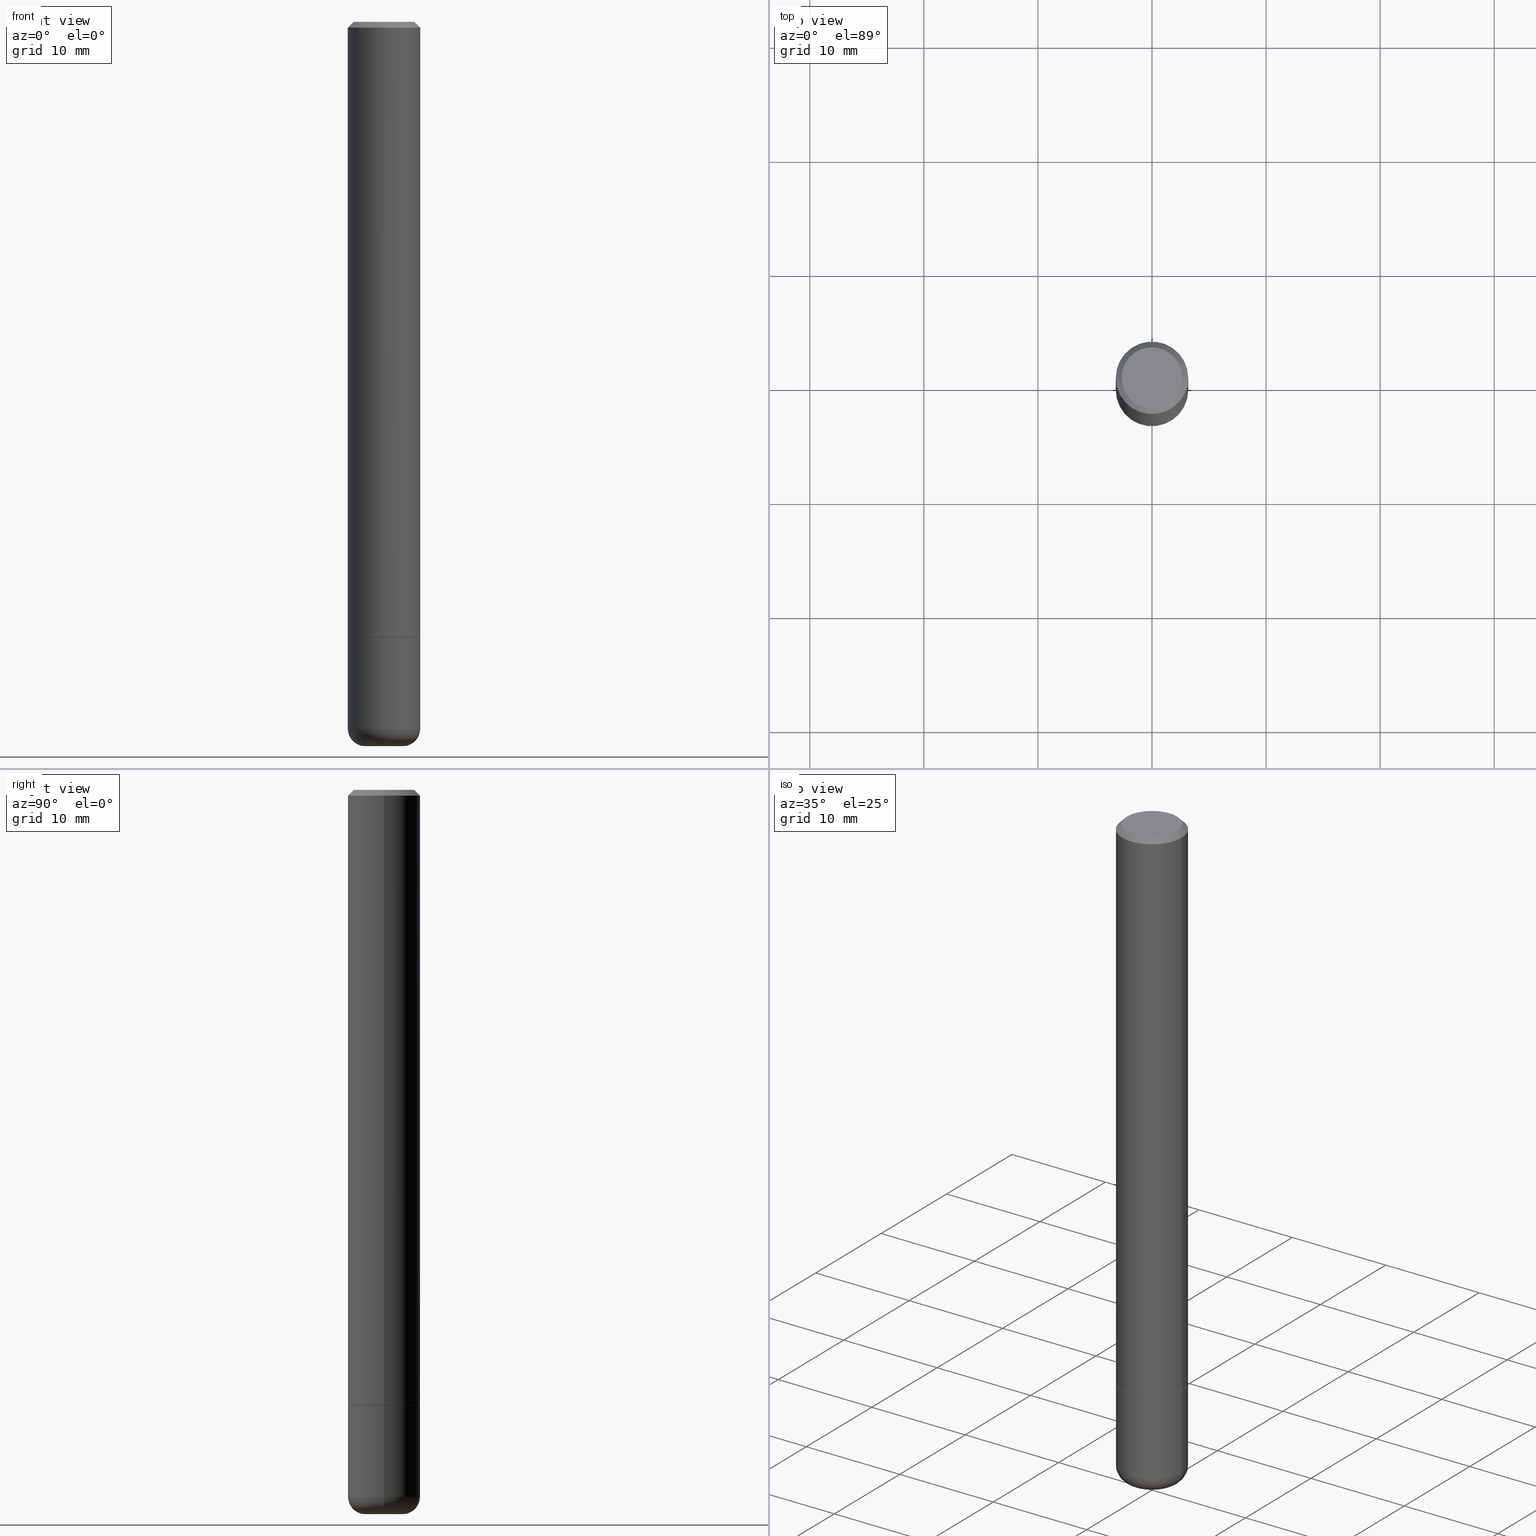
[diagram: canonical four-view strip — front | top / right | iso, engineering-drawing reading convention]
A machine part, canonical four-view strip (front | top / right | iso — engineering-drawing reading convention). The complete STEP part file that produces these views, byte-faithful:
ISO-10303-21;
HEADER;
FILE_DESCRIPTION (( 'STEP AP203' ),
    '1' );
FILE_NAME ('35668.STEP',
    '2022-11-02T20:37:26',
    ( '' ),
    ( '' ),
    'SwSTEP 2.0',
    'SolidWorks 2022',
    '' );
FILE_SCHEMA (( 'CONFIG_CONTROL_DESIGN' ));
ENDSEC;

DATA;
#1 = ORIENTED_EDGE ( 'NONE', *, *, #438, .F. ) ;
#2 = EDGE_CURVE ( 'NONE', #109, #209, #35, .T. ) ;
#3 = PERSON_AND_ORGANIZATION_ROLE ( 'creator' ) ;
#4 = AXIS2_PLACEMENT_3D ( 'NONE', #250, #470, #98 ) ;
#5 = APPROVAL_DATE_TIME ( #230, #8 ) ;
#6 = EDGE_CURVE ( 'NONE', #269, #481, #456, .T. ) ;
#7 = ORIENTED_EDGE ( 'NONE', *, *, #208, .T. ) ;
#8 = APPROVAL ( #306, 'UNSPECIFIED' ) ;
#9 = CARTESIAN_POINT ( 'NONE',  ( 1.043851414335219781E-45, -1.490343170380447145E-31, -4.268512490100411279E-17 ) ) ;
#10 = FACE_OUTER_BOUND ( 'NONE', #401, .T. ) ;
#11 = ORIENTED_EDGE ( 'NONE', *, *, #166, .F. ) ;
#12 = CARTESIAN_POINT ( 'NONE',  ( 5.966949474049262823E-29, -8.519222443471929064E-15, -2.440002284616149986 ) ) ;
#13 = DIRECTION ( 'NONE',  ( 2.445468806185136597E-29, -3.491481338843145583E-15, -1.000000000000000000 ) ) ;
#14 = ORIENTED_EDGE ( 'NONE', *, *, #86, .T. ) ;
#15 = FACE_OUTER_BOUND ( 'NONE', #84, .T. ) ;
#16 = AXIS2_PLACEMENT_3D ( 'NONE', #343, #347, #194 ) ;
#17 = CIRCLE ( 'NONE', #301, 0.1049999999999993577 ) ;
#18 = DIRECTION ( 'NONE',  ( 0.9993908270190955401, -6.978169709227559632E-15, -0.03489949670250663133 ) ) ;
#19 = EDGE_CURVE ( 'NONE', #147, #381, #78, .T. ) ;
#20 = DIRECTION ( 'NONE',  ( -1.000000000000000000, 6.982962677686265922E-15, -4.876176775795935793E-29 ) ) ;
#21 = CARTESIAN_POINT ( 'NONE',  ( 4.890937612370295054E-31, -6.982962677686322424E-17, -0.02000000000000009062 ) ) ;
#22 = ORIENTED_EDGE ( 'NONE', *, *, #384, .F. ) ;
#23 = CARTESIAN_POINT ( 'NONE',  ( 5.196621213143416389E-29, -7.419397845041685201E-15, -2.125000000000000444 ) ) ;
#24 = CARTESIAN_POINT ( 'NONE',  ( 6.113387482807804113E-29, -8.728297109885438444E-15, -2.499883649035179900 ) ) ;
#25 = CARTESIAN_POINT ( 'NONE',  ( -0.1249999999999998335, 8.881784197001240490E-16, -6.148668862818623819E-30 ) ) ;
#26 = CARTESIAN_POINT ( 'NONE',  ( -0.05114390787009806538, -8.371161110037518943E-15, -2.499883649035179900 ) ) ;
#27 = CONICAL_SURFACE ( 'NONE', #433, 0.1239999999999996244, 0.7853981633974141952 ) ;
#28 = CARTESIAN_POINT ( 'NONE',  ( 5.196621213143416389E-29, -7.419397845041685201E-15, -2.125000000000000444 ) ) ;
#29 = ORIENTED_EDGE ( 'NONE', *, *, #224, .T. ) ;
#30 = DIRECTION ( 'NONE',  ( 1.000000000000000000, -6.982962677686269077E-15, 0.000000000000000000 ) ) ;
#31 = VERTEX_POINT ( 'NONE', #464 ) ;
#32 = CONICAL_SURFACE ( 'NONE', #213, 0.05114390787009806538, 1.535889741755004367 ) ;
#33 = CARTESIAN_POINT ( 'NONE',  ( 5.196621213143416389E-29, -7.419397845041685201E-15, -2.125000000000000444 ) ) ;
#34 = CIRCLE ( 'NONE', #323, 0.1249999999999996253 ) ;
#35 = LINE ( 'NONE', #226, #51 ) ;
#36 = APPROVAL ( #412, 'UNSPECIFIED' ) ;
#37 = APPROVAL_PERSON_ORGANIZATION ( #119, #8, #42 ) ;
#38 = DIRECTION ( 'NONE',  ( 0.7071067811865232589, -2.468850131082003836E-15, 0.7071067811865715536 ) ) ;
#39 =( LENGTH_UNIT ( ) NAMED_UNIT ( * ) SI_UNIT ( $, .METRE. ) );
#40 = ORIENTED_EDGE ( 'NONE', *, *, #228, .F. ) ;
#41 = CARTESIAN_POINT ( 'NONE',  ( -0.06447640787009809027, -7.950807469239815743E-15, -2.500000000000000000 ) ) ;
#42 = APPROVAL_ROLE ( '' ) ;
#43 = VERTEX_POINT ( 'NONE', #54 ) ;
#44 = COORDINATED_UNIVERSAL_TIME_OFFSET ( 5, 0, .BEHIND. ) ;
#45 = CARTESIAN_POINT ( 'NONE',  ( 6.113387482807804113E-29, -8.728297109885438444E-15, -2.499883649035179900 ) ) ;
#46 = AXIS2_PLACEMENT_3D ( 'NONE', #391, #13, #66 ) ;
#47 = CIRCLE ( 'NONE', #271, 0.1239999999999996244 ) ;
#48 = PLANE ( 'NONE',  #294 ) ;
#49 = PERSON_AND_ORGANIZATION ( #425, #247 ) ;
#50 = APPROVAL ( #490, 'UNSPECIFIED' ) ;
#51 = VECTOR ( 'NONE', #185, 39.37007874015748143 ) ;
#52 = AXIS2_PLACEMENT_3D ( 'NONE', #12, #235, #313 ) ;
#53 = CYLINDRICAL_SURFACE ( 'NONE', #309, 0.1249999999999994865 ) ;
#54 = CARTESIAN_POINT ( 'NONE',  ( 0.1249999999999993477, -9.273918764983002075E-16, -0.02000000000000009062 ) ) ;
#55 = EDGE_LOOP ( 'NONE', ( #180, #177, #237, #204 ) ) ;
#56 = DIRECTION ( 'NONE',  ( 0.7071067811865465735, -7.319954787623252890E-15, -0.7071067811865484609 ) ) ;
#57 = FACE_OUTER_BOUND ( 'NONE', #389, .T. ) ;
#58 = DIRECTION ( 'NONE',  ( -6.982962677686266711E-15, -1.000000000000000000, 3.491481338843145583E-15 ) ) ;
#59 = ADVANCED_FACE ( 'NONE', ( #10 ), #32, .F. ) ;
#60 = EDGE_CURVE ( 'NONE', #31, #43, #440, .T. ) ;
#61 = DIMENSIONAL_EXPONENTS ( 1.000000000000000000, 0.000000000000000000, 0.000000000000000000, 0.000000000000000000, 0.000000000000000000, 0.000000000000000000, 0.000000000000000000 ) ;
#62 = CARTESIAN_POINT ( 'NONE',  ( 0.06447640787009809027, -9.178939696856037528E-15, -2.500000000000000000 ) ) ;
#63 = VECTOR ( 'NONE', #186, 39.37007874015748854 ) ;
#64 = FACE_OUTER_BOUND ( 'NONE', #436, .T. ) ;
#65 = DIRECTION ( 'NONE',  ( 1.000000000000000000, -6.982962677686266711E-15, 4.876176775795935793E-29 ) ) ;
#66 = DIRECTION ( 'NONE',  ( -1.000000000000000000, 6.982962677686264344E-15, 0.000000000000000000 ) ) ;
#67 = APPLICATION_CONTEXT ( 'configuration controlled 3d designs of mechanical parts and assemblies' ) ;
#68 = CARTESIAN_POINT ( 'NONE',  ( -0.1249999999999996253, -7.081131724556683478E-15, -2.125000000000000444 ) ) ;
#69 = PERSON_AND_ORGANIZATION_ROLE ( 'design_owner' ) ;
#70 = VECTOR ( 'NONE', #328, 39.37007874015748854 ) ;
#71 = DATE_AND_TIME ( #437, #460 ) ;
#72 = DIRECTION ( 'NONE',  ( -2.445468806185136877E-29, 3.491481338843145188E-15, 1.000000000000000000 ) ) ;
#73 = ORIENTED_EDGE ( 'NONE', *, *, #134, .T. ) ;
#74 = CC_DESIGN_DATE_AND_TIME_ASSIGNMENT ( #191, #157, ( #155 ) ) ;
#75 = LINE ( 'NONE', #400, #339 ) ;
#76 = ORIENTED_EDGE ( 'NONE', *, *, #392, .F. ) ;
#77 = CARTESIAN_POINT ( 'NONE',  ( 6.113387482807804113E-29, -8.728297109885438444E-15, -2.499883649035179900 ) ) ;
#78 = CIRCLE ( 'NONE', #322, 0.05999999999999985206 ) ;
#79 = DIRECTION ( 'NONE',  ( 1.000000000000000000, 0.000000000000000000, 0.000000000000000000 ) ) ;
#80 = CIRCLE ( 'NONE', #363, 0.1249999999999996253 ) ;
#81 = DIRECTION ( 'NONE',  ( -2.445468806185136597E-29, 3.491481338843145583E-15, 1.000000000000000000 ) ) ;
#82 = CARTESIAN_POINT ( 'NONE',  ( -0.1239999999999996244, -6.538324852699164133E-15, -2.125000000000000444 ) ) ;
#83 = CALENDAR_DATE ( 2022, 2, 11 ) ;
#84 = EDGE_LOOP ( 'NONE', ( #478, #138, #445, #95 ) ) ;
#85 = DIRECTION ( 'NONE',  ( 2.438088387897960049E-29, -3.491481338843145188E-15, -1.000000000000000000 ) ) ;
#86 = EDGE_CURVE ( 'NONE', #346, #147, #101, .T. ) ;
#87 = FACE_OUTER_BOUND ( 'NONE', #372, .T. ) ;
#88 = CONICAL_SURFACE ( 'NONE', #415, 0.1249999999999993477, 0.7853981633974469467 ) ;
#89 = LOCAL_TIME ( 16, 37, 26.00000000000000000, #340 ) ;
#90 = EDGE_LOOP ( 'NONE', ( #333, #466, #159, #455 ) ) ;
#91 = ADVANCED_FACE ( 'NONE', ( #57 ), #190, .F. ) ;
#92 = AXIS2_PLACEMENT_3D ( 'NONE', #287, #435, #106 ) ;
#93 = CARTESIAN_POINT ( 'NONE',  ( 0.1249999999999996253, -8.292268179752466962E-15, -2.125000000000000444 ) ) ;
#94 = MANIFOLD_SOLID_BREP ( 'Body-Move/Copy2[2]', #150 ) ;
#95 = ORIENTED_EDGE ( 'NONE', *, *, #252, .F. ) ;
#96 = EDGE_CURVE ( 'NONE', #483, #481, #107, .T. ) ;
#97 = DIRECTION ( 'NONE',  ( -2.445468806185136597E-29, 3.491481338843145583E-15, 1.000000000000000000 ) ) ;
#98 = DIRECTION ( 'NONE',  ( 1.000000000000000000, -6.982962677686280121E-15, 0.000000000000000000 ) ) ;
#99 = DIRECTION ( 'NONE',  ( -2.445468806185136597E-29, 3.491481338843145583E-15, 1.000000000000000000 ) ) ;
#100 = CARTESIAN_POINT ( 'NONE',  ( 6.113672015462842613E-29, -8.728703347107864943E-15, -2.500000000000000000 ) ) ;
#101 = CIRCLE ( 'NONE', #158, 0.06447640787009809027 ) ;
#102 = CARTESIAN_POINT ( 'NONE',  ( 0.000000000000000000, 0.000000000000000000, 0.000000000000000000 ) ) ;
#103 = AXIS2_PLACEMENT_3D ( 'NONE', #402, #85, #265 ) ;
#104 = VERTEX_POINT ( 'NONE', #361 ) ;
#105 = ADVANCED_FACE ( 'NONE', ( #64 ), #253, .F. ) ;
#106 = DIRECTION ( 'NONE',  ( 1.000000000000000000, -6.982962677686268288E-15, 4.883557194083113462E-29 ) ) ;
#107 = LINE ( 'NONE', #387, #432 ) ;
#108 = EDGE_CURVE ( 'NONE', #483, #269, #167, .T. ) ;
#109 = VERTEX_POINT ( 'NONE', #288 ) ;
#110 = MANIFOLD_SOLID_BREP ( 'Body-Move/Copy2[1]', #475 ) ;
#111 = DIRECTION ( 'NONE',  ( -2.445468806185136597E-29, 3.491481338843145583E-15, 1.000000000000000000 ) ) ;
#112 = DIRECTION ( 'NONE',  ( -1.000000000000000000, 6.982962677686265922E-15, 0.000000000000000000 ) ) ;
#113 = ORIENTED_EDGE ( 'NONE', *, *, #108, .F. ) ;
#114 = PERSON_AND_ORGANIZATION ( #425, #247 ) ;
#115 = ORIENTED_EDGE ( 'NONE', *, *, #60, .F. ) ;
#116 = DIRECTION ( 'NONE',  ( 1.000000000000000000, -6.982962677686269077E-15, 0.000000000000000000 ) ) ;
#117 = CIRCLE ( 'NONE', #380, 0.1249999999999993477 ) ;
#118 = ORIENTED_EDGE ( 'NONE', *, *, #337, .T. ) ;
#119 = PERSON_AND_ORGANIZATION ( #425, #247 ) ;
#120 = VERTEX_POINT ( 'NONE', #175 ) ;
#121 = APPROVAL_DATE_TIME ( #376, #36 ) ;
#122 = EDGE_CURVE ( 'NONE', #147, #346, #229, .T. ) ;
#123 = CARTESIAN_POINT ( 'NONE',  ( 5.196621213143416389E-29, -7.419397845041685201E-15, -2.125000000000000444 ) ) ;
#124 = DIRECTION ( 'NONE',  ( -2.445468806185136597E-29, 3.491481338843145583E-15, 1.000000000000000000 ) ) ;
#125 = DIRECTION ( 'NONE',  ( -2.445468806185136597E-29, 3.491481338843145583E-15, 1.000000000000000000 ) ) ;
#126 = ORIENTED_EDGE ( 'NONE', *, *, #216, .F. ) ;
#127 = ADVANCED_FACE ( 'NONE', ( #270 ), #444, .F. ) ;
#128 = LINE ( 'NONE', #427, #192 ) ;
#129 = DIRECTION ( 'NONE',  ( -1.000000000000000000, 6.982962677686275388E-15, 0.000000000000000000 ) ) ;
#130 = ORIENTED_EDGE ( 'NONE', *, *, #431, .T. ) ;
#131 = FACE_OUTER_BOUND ( 'NONE', #90, .T. ) ;
#132 = CYLINDRICAL_SURFACE ( 'NONE', #205, 0.1249999999999998335 ) ;
#133 = AXIS2_PLACEMENT_3D ( 'NONE', #463, #365, #112 ) ;
#134 = EDGE_CURVE ( 'NONE', #481, #269, #231, .T. ) ;
#135 = COORDINATED_UNIVERSAL_TIME_OFFSET ( 5, 0, .BEHIND. ) ;
#136 = EDGE_LOOP ( 'NONE', ( #447, #383, #29, #285 ) ) ;
#137 = CARTESIAN_POINT ( 'NONE',  ( -0.1250000000000000278, -7.081131724556681111E-15, -2.440002284616149986 ) ) ;
#138 = ORIENTED_EDGE ( 'NONE', *, *, #438, .T. ) ;
#139 = EDGE_CURVE ( 'NONE', #104, #145, #371, .T. ) ;
#140 = EDGE_CURVE ( 'NONE', #434, #449, #335, .T. ) ;
#141 = VECTOR ( 'NONE', #210, 39.37007874015748143 ) ;
#142 = AXIS2_PLACEMENT_3D ( 'NONE', #77, #409, #406 ) ;
#143 = DIRECTION ( 'NONE',  ( 1.000000000000000000, -6.982962677686267499E-15, 4.874400871621268483E-29 ) ) ;
#144 = CARTESIAN_POINT ( 'NONE',  ( 0.000000000000000000, 0.000000000000000000, 0.000000000000000000 ) ) ;
#145 = VERTEX_POINT ( 'NONE', #225 ) ;
#146 = MECHANICAL_CONTEXT ( 'NONE', #67, 'mechanical' ) ;
#147 = VERTEX_POINT ( 'NONE', #41 ) ;
#148 = ORIENTED_EDGE ( 'NONE', *, *, #480, .T. ) ;
#149 = ADVANCED_FACE ( 'NONE', ( #87 ), #484, .T. ) ;
#150 = CLOSED_SHELL ( 'NONE', ( #199, #318, #377, #303, #243, #171, #232, #127 ) ) ;
#151 = CALENDAR_DATE ( 2022, 2, 11 ) ;
#152 = VECTOR ( 'NONE', #56, 39.37007874015748143 ) ;
#153 = DIRECTION ( 'NONE',  ( 7.105427357601001859E-15, 1.000000000000000000, -3.491481338843145583E-15 ) ) ;
#154 = APPLICATION_CONTEXT ( 'configuration controlled 3d designs of mechanical parts and assemblies' ) ;
#155 = PRODUCT_DEFINITION ( 'UNKNOWN', '', #222, #259 ) ;
#156 = DIRECTION ( 'NONE',  ( -2.445468806185136597E-29, 3.491481338843145583E-15, 1.000000000000000000 ) ) ;
#157 = DATE_TIME_ROLE ( 'creation_date' ) ;
#158 = AXIS2_PLACEMENT_3D ( 'NONE', #100, #244, #358 ) ;
#159 = ORIENTED_EDGE ( 'NONE', *, *, #216, .T. ) ;
#160 = LOCAL_TIME ( 16, 37, 26.00000000000000000, #162 ) ;
#161 = CARTESIAN_POINT ( 'NONE',  ( 5.966949474049262823E-29, -8.519222443471929064E-15, -2.440002284616149986 ) ) ;
#162 = COORDINATED_UNIVERSAL_TIME_OFFSET ( 5, 0, .BEHIND. ) ;
#163 = FACE_OUTER_BOUND ( 'NONE', #351, .T. ) ;
#164 = ADVANCED_FACE ( 'NONE', ( #15 ), #331, .F. ) ;
#165 = CARTESIAN_POINT ( 'NONE',  ( 0.1049999999999993577, -8.238720831321533257E-16, -4.268512490099867088E-17 ) ) ;
#166 = EDGE_CURVE ( 'NONE', #109, #381, #397, .T. ) ;
#167 = LINE ( 'NONE', #26, #141 ) ;
#168 = AXIS2_PLACEMENT_3D ( 'NONE', #200, #348, #319 ) ;
#169 = FACE_OUTER_BOUND ( 'NONE', #413, .T. ) ;
#170 = DIRECTION ( 'NONE',  ( -1.000000000000000000, 6.982962677686265922E-15, 0.000000000000000000 ) ) ;
#171 = ADVANCED_FACE ( 'NONE', ( #241 ), #236, .T. ) ;
#172 = FACE_OUTER_BOUND ( 'NONE', #136, .T. ) ;
#173 = DIRECTION ( 'NONE',  ( -2.445468806185136877E-29, 3.491481338843145188E-15, 1.000000000000000000 ) ) ;
#174 = VECTOR ( 'NONE', #315, 39.37007874015748143 ) ;
#175 = CARTESIAN_POINT ( 'NONE',  ( -0.1049999999999993577, 7.681258945454844472E-16, -4.268512490100935748E-17 ) ) ;
#176 = APPLICATION_PROTOCOL_DEFINITION ( 'international standard', 'config_control_design', 1994, #154 ) ;
#177 = ORIENTED_EDGE ( 'NONE', *, *, #267, .T. ) ;
#178 = DIRECTION ( 'NONE',  ( -2.445468806185136597E-29, 3.491481338843145583E-15, 1.000000000000000000 ) ) ;
#179 = CYLINDRICAL_SURFACE ( 'NONE', #245, 0.1249999999999998335 ) ;
#180 = ORIENTED_EDGE ( 'NONE', *, *, #297, .F. ) ;
#181 = DIRECTION ( 'NONE',  ( 1.000000000000000000, -6.982962677686269077E-15, 0.000000000000000000 ) ) ;
#182 = VERTEX_POINT ( 'NONE', #165 ) ;
#183 = CIRCLE ( 'NONE', #221, 0.05999999999999985206 ) ;
#184 = CARTESIAN_POINT ( 'NONE',  ( 4.890937612370295054E-31, -6.982962677686322424E-17, -0.02000000000000009062 ) ) ;
#185 = DIRECTION ( 'NONE',  ( -2.445468806185136877E-29, 3.491481338843145188E-15, 1.000000000000000000 ) ) ;
#186 = DIRECTION ( 'NONE',  ( -0.7071067811865232589, 7.493145998870265808E-15, 0.7071067811865715536 ) ) ;
#187 = DIRECTION ( 'NONE',  ( 1.000000000000000000, -6.982962677686267499E-15, 0.000000000000000000 ) ) ;
#188 = ORIENTED_EDGE ( 'NONE', *, *, #453, .T. ) ;
#189 = ORIENTED_EDGE ( 'NONE', *, *, #139, .T. ) ;
#190 = CONICAL_SURFACE ( 'NONE', #468, 0.05114390787009806538, 1.535889741755004367 ) ;
#191 = DATE_AND_TIME ( #151, #442 ) ;
#192 = VECTOR ( 'NONE', #465, 39.37007874015748854 ) ;
#193 = ORIENTED_EDGE ( 'NONE', *, *, #228, .T. ) ;
#194 = DIRECTION ( 'NONE',  ( -1.000000000000000000, 6.982962677686264344E-15, 0.000000000000000000 ) ) ;
#195 = PERSON_AND_ORGANIZATION ( #425, #247 ) ;
#196 = CONICAL_SURFACE ( 'NONE', #133, 0.1249999999999993477, 0.7853981633974469467 ) ;
#197 =( GEOMETRIC_REPRESENTATION_CONTEXT ( 3 ) GLOBAL_UNCERTAINTY_ASSIGNED_CONTEXT ( ( #279 ) ) GLOBAL_UNIT_ASSIGNED_CONTEXT ( ( #251, #443, #394 ) ) REPRESENTATION_CONTEXT ( 'NONE', 'WORKASPACE' ) );
#198 = DIRECTION ( 'NONE',  ( 1.000000000000000000, -6.982962677686265922E-15, 4.876176775795935793E-29 ) ) ;
#199 = ADVANCED_FACE ( 'NONE', ( #278 ), #27, .T. ) ;
#200 = CARTESIAN_POINT ( 'NONE',  ( 5.966949474049262823E-29, -8.519222443471929064E-15, -2.440002284616149986 ) ) ;
#201 = DIRECTION ( 'NONE',  ( 2.445468806185136597E-29, -3.491481338843145583E-15, -1.000000000000000000 ) ) ;
#202 = ORIENTED_EDGE ( 'NONE', *, *, #350, .T. ) ;
#203 = DIRECTION ( 'NONE',  ( 1.000000000000000000, -6.982962677686253300E-15, 0.000000000000000000 ) ) ;
#204 = ORIENTED_EDGE ( 'NONE', *, *, #350, .F. ) ;
#205 = AXIS2_PLACEMENT_3D ( 'NONE', #357, #283, #65 ) ;
#206 = CARTESIAN_POINT ( 'NONE',  ( 5.196621213143416389E-29, -7.419397845041685201E-15, -2.125000000000000444 ) ) ;
#207 = DIRECTION ( 'NONE',  ( -2.445468806185136597E-29, 3.491481338843145583E-15, 1.000000000000000000 ) ) ;
#208 = EDGE_CURVE ( 'NONE', #145, #43, #317, .T. ) ;
#209 = VERTEX_POINT ( 'NONE', #93 ) ;
#210 = DIRECTION ( 'NONE',  ( -0.9993908270190955401, 6.856857904024535960E-15, -0.03489949670250663133 ) ) ;
#211 = CARTESIAN_POINT ( 'NONE',  ( 5.194175744337230786E-29, -7.415906363702842194E-15, -2.124000000000000554 ) ) ;
#212 = APPROVAL_ROLE ( '' ) ;
#213 = AXIS2_PLACEMENT_3D ( 'NONE', #45, #280, #129 ) ;
#214 = AXIS2_PLACEMENT_3D ( 'NONE', #206, #215, #181 ) ;
#215 = DIRECTION ( 'NONE',  ( -2.445468806185136597E-29, 3.491481338843145583E-15, 1.000000000000000000 ) ) ;
#216 = EDGE_CURVE ( 'NONE', #120, #31, #272, .T. ) ;
#217 = ORIENTED_EDGE ( 'NONE', *, *, #2, .F. ) ;
#218 = CC_DESIGN_PERSON_AND_ORGANIZATION_ASSIGNMENT ( #114, #69, ( #450 ) ) ;
#219 = ORIENTED_EDGE ( 'NONE', *, *, #108, .T. ) ;
#220 = EDGE_LOOP ( 'NONE', ( #118, #148, #418, #298 ) ) ;
#221 = AXIS2_PLACEMENT_3D ( 'NONE', #274, #58, #203 ) ;
#222 = PRODUCT_DEFINITION_FORMATION_WITH_SPECIFIED_SOURCE ( 'ANY', '', #450, .NOT_KNOWN. ) ;
#223 = DIRECTION ( 'NONE',  ( 1.000000000000000000, -6.982962677686255667E-15, 0.000000000000000000 ) ) ;
#224 = EDGE_CURVE ( 'NONE', #346, #109, #183, .T. ) ;
#225 = CARTESIAN_POINT ( 'NONE',  ( 0.1249999999999996253, -8.288776698413623955E-15, -2.124000000000000554 ) ) ;
#226 = CARTESIAN_POINT ( 'NONE',  ( 0.1249999999999998335, -8.728703347107821555E-16, 6.095220969744911333E-30 ) ) ;
#227 = SECURITY_CLASSIFICATION_LEVEL ( 'unclassified' ) ;
#228 = EDGE_CURVE ( 'NONE', #182, #120, #448, .T. ) ;
#229 = CIRCLE ( 'NONE', #4, 0.06447640787009809027 ) ;
#230 = DATE_AND_TIME ( #454, #89 ) ;
#231 = CIRCLE ( 'NONE', #142, 0.05114390787009806538 ) ;
#232 = ADVANCED_FACE ( 'NONE', ( #163 ), #239, .F. ) ;
#233 = DIRECTION ( 'NONE',  ( 1.000000000000000000, -6.982962677686267499E-15, 4.874400871621268483E-29 ) ) ;
#234 = PERSON_AND_ORGANIZATION ( #425, #247 ) ;
#235 = DIRECTION ( 'NONE',  ( -2.445468806185136597E-29, 3.491481338843145583E-15, 1.000000000000000000 ) ) ;
#236 = CONICAL_SURFACE ( 'NONE', #353, 0.1239999999999996244, 0.7853981633974141952 ) ;
#237 = ORIENTED_EDGE ( 'NONE', *, *, #2, .T. ) ;
#238 = AXIS2_PLACEMENT_3D ( 'NONE', #257, #368, #79 ) ;
#239 = PLANE ( 'NONE',  #458 ) ;
#240 = DIRECTION ( 'NONE',  ( 1.000000000000000000, -6.982962677686265922E-15, 0.000000000000000000 ) ) ;
#241 = FACE_OUTER_BOUND ( 'NONE', #316, .T. ) ;
#242 = DIRECTION ( 'NONE',  ( 1.000000000000000000, -6.982962677686265922E-15, 4.876176775795935793E-29 ) ) ;
#243 = ADVANCED_FACE ( 'NONE', ( #169 ), #53, .T. ) ;
#244 = DIRECTION ( 'NONE',  ( -2.445468806185136597E-29, 3.491481338843145583E-15, 1.000000000000000000 ) ) ;
#245 = AXIS2_PLACEMENT_3D ( 'NONE', #144, #296, #369 ) ;
#246 = TOROIDAL_SURFACE ( 'NONE', #92, 0.06500000000000019651, 0.05999999999999985206 ) ;
#247 = ORGANIZATION ( 'UNSPECIFIED', 'UNSPECIFIED', '' ) ;
#248 = DIRECTION ( 'NONE',  ( 2.445468806185136597E-29, -3.491481338843145583E-15, -1.000000000000000000 ) ) ;
#249 = CARTESIAN_POINT ( 'NONE',  ( 8.728703347108324454E-16, 0.1249999999999922007, -2.125000000000000888 ) ) ;
#250 = CARTESIAN_POINT ( 'NONE',  ( 6.113672015462842613E-29, -8.728703347107864943E-15, -2.500000000000000000 ) ) ;
#251 =( CONVERSION_BASED_UNIT ( 'INCH', #486 ) LENGTH_UNIT ( ) NAMED_UNIT ( #61 ) );
#252 = EDGE_CURVE ( 'NONE', #269, #147, #128, .T. ) ;
#253 = CONICAL_SURFACE ( 'NONE', #46, 0.06447640787009809027, 1.562069680534929894 ) ;
#254 = VECTOR ( 'NONE', #173, 39.37007874015748143 ) ;
#255 = CARTESIAN_POINT ( 'NONE',  ( 5.194175744337230786E-29, -7.415906363702842194E-15, -2.124000000000000554 ) ) ;
#256 = EDGE_LOOP ( 'NONE', ( #130, #329, #305, #291 ) ) ;
#257 = CARTESIAN_POINT ( 'NONE',  ( 0.000000000000000000, 0.000000000000000000, 0.000000000000000000 ) ) ;
#258 = ORIENTED_EDGE ( 'NONE', *, *, #480, .F. ) ;
#259 = DESIGN_CONTEXT ( 'detailed design', #154, 'design' ) ;
#260 = EDGE_CURVE ( 'NONE', #182, #43, #419, .T. ) ;
#261 = PERSON_AND_ORGANIZATION ( #425, #247 ) ;
#262 = ORIENTED_EDGE ( 'NONE', *, *, #134, .F. ) ;
#263 = AXIS2_PLACEMENT_3D ( 'NONE', #9, #281, #233 ) ;
#264 = EDGE_LOOP ( 'NONE', ( #40, #282, #188, #126 ) ) ;
#265 = DIRECTION ( 'NONE',  ( -1.000000000000000000, 6.982962677686265922E-15, -4.876176775795935793E-29 ) ) ;
#266 = ORIENTED_EDGE ( 'NONE', *, *, #431, .F. ) ;
#267 = EDGE_CURVE ( 'NONE', #381, #109, #469, .T. ) ;
#268 = DATE_AND_TIME ( #273, #160 ) ;
#269 = VERTEX_POINT ( 'NONE', #471 ) ;
#270 = FACE_OUTER_BOUND ( 'NONE', #327, .T. ) ;
#271 = AXIS2_PLACEMENT_3D ( 'NONE', #23, #474, #321 ) ;
#272 = LINE ( 'NONE', #459, #388 ) ;
#273 = CALENDAR_DATE ( 2022, 2, 11 ) ;
#274 = CARTESIAN_POINT ( 'NONE',  ( 0.06500000000000019651, -8.973115017521537346E-15, -2.440002284616149986 ) ) ;
#275 = DIRECTION ( 'NONE',  ( 1.000000000000000000, -6.982962677686269077E-15, 0.000000000000000000 ) ) ;
#276 = AXIS2_PLACEMENT_3D ( 'NONE', #33, #399, #187 ) ;
#277 = ORIENTED_EDGE ( 'NONE', *, *, #252, .T. ) ;
#278 = FACE_OUTER_BOUND ( 'NONE', #256, .T. ) ;
#279 = UNCERTAINTY_MEASURE_WITH_UNIT (LENGTH_MEASURE( 1.000000000000000082E-05 ), #251, 'distance_accuracy_value', 'NONE');
#280 = DIRECTION ( 'NONE',  ( 2.445468806185136597E-29, -3.491481338843145583E-15, -1.000000000000000000 ) ) ;
#281 = DIRECTION ( 'NONE',  ( -2.445468806185136597E-29, 3.491481338843145583E-15, 1.000000000000000000 ) ) ;
#282 = ORIENTED_EDGE ( 'NONE', *, *, #260, .T. ) ;
#283 = DIRECTION ( 'NONE',  ( -2.445468806185136597E-29, 3.491481338843145583E-15, 1.000000000000000000 ) ) ;
#284 = DIRECTION ( 'NONE',  ( -1.000000000000000000, 6.982962677686275388E-15, 0.000000000000000000 ) ) ;
#285 = ORIENTED_EDGE ( 'NONE', *, *, #267, .F. ) ;
#286 = LOCAL_TIME ( 16, 37, 26.00000000000000000, #407 ) ;
#287 = CARTESIAN_POINT ( 'NONE',  ( 5.966949474049262823E-29, -8.519222443471929064E-15, -2.440002284616149986 ) ) ;
#288 = CARTESIAN_POINT ( 'NONE',  ( 0.1250000000000000278, -9.392092778182712402E-15, -2.440002284616149986 ) ) ;
#290 = ADVANCED_FACE ( 'NONE', ( #375 ), #48, .F. ) ;
#289 = CARTESIAN_POINT ( 'NONE',  ( 6.109019913137040707E-29, -8.722061377921489685E-15, -2.498097664417540553 ) ) ;
#291 = ORIENTED_EDGE ( 'NONE', *, *, #139, .F. ) ;
#292 = DIRECTION ( 'NONE',  ( -2.445468806185136597E-29, 3.491481338843145583E-15, 1.000000000000000000 ) ) ;
#293 = EDGE_LOOP ( 'NONE', ( #356, #311, #76, #217 ) ) ;
#294 = AXIS2_PLACEMENT_3D ( 'NONE', #249, #473, #20 ) ;
#295 = APPROVAL_PERSON_ORGANIZATION ( #261, #50, #212 ) ;
#296 = DIRECTION ( 'NONE',  ( -2.445468806185136597E-29, 3.491481338843145583E-15, 1.000000000000000000 ) ) ;
#297 = EDGE_CURVE ( 'NONE', #381, #334, #390, .T. ) ;
#298 = ORIENTED_EDGE ( 'NONE', *, *, #208, .F. ) ;
#299 = ORIENTED_EDGE ( 'NONE', *, *, #384, .T. ) ;
#300 = CIRCLE ( 'NONE', #276, 0.1239999999999996244 ) ;
#301 = AXIS2_PLACEMENT_3D ( 'NONE', #325, #479, #143 ) ;
#302 = DIRECTION ( 'NONE',  ( -1.000000000000000000, 7.105427357601008170E-15, 0.000000000000000000 ) ) ;
#303 = ADVANCED_FACE ( 'NONE', ( #131 ), #88, .T. ) ;
#304 = ADVANCED_FACE ( 'NONE', ( #393 ), #132, .T. ) ;
#305 = ORIENTED_EDGE ( 'NONE', *, *, #337, .F. ) ;
#306 = APPROVAL_STATUS ( 'not_yet_approved' ) ;
#307 = CARTESIAN_POINT ( 'NONE',  ( 5.196621213143416389E-29, -7.419397845041685201E-15, -2.125000000000000444 ) ) ;
#308 = AXIS2_PLACEMENT_3D ( 'NONE', #21, #207, #240 ) ;
#309 = AXIS2_PLACEMENT_3D ( 'NONE', #467, #125, #198 ) ;
#310 = PERSON_AND_ORGANIZATION ( #425, #247 ) ;
#311 = ORIENTED_EDGE ( 'NONE', *, *, #297, .T. ) ;
#312 = EDGE_CURVE ( 'NONE', #434, #104, #47, .T. ) ;
#313 = DIRECTION ( 'NONE',  ( 1.000000000000000000, -6.982962677686268288E-15, 4.883557194083113462E-29 ) ) ;
#314 = DATE_TIME_ROLE ( 'classification_date' ) ;
#315 = DIRECTION ( 'NONE',  ( -2.445468806185136877E-29, 3.491481338843145188E-15, 1.000000000000000000 ) ) ;
#316 = EDGE_LOOP ( 'NONE', ( #429, #396, #189, #22 ) ) ;
#317 = LINE ( 'NONE', #385, #174 ) ;
#318 = ADVANCED_FACE ( 'NONE', ( #360 ), #430, .T. ) ;
#319 = DIRECTION ( 'NONE',  ( 1.000000000000000000, -6.982962677686269077E-15, 0.000000000000000000 ) ) ;
#320 = CARTESIAN_POINT ( 'NONE',  ( 4.890937612370295054E-31, -6.982962677686322424E-17, -0.02000000000000009062 ) ) ;
#321 = DIRECTION ( 'NONE',  ( 1.000000000000000000, -6.982962677686267499E-15, 0.000000000000000000 ) ) ;
#322 = AXIS2_PLACEMENT_3D ( 'NONE', #336, #153, #302 ) ;
#323 = AXIS2_PLACEMENT_3D ( 'NONE', #28, #111, #116 ) ;
#324 = CC_DESIGN_PERSON_AND_ORGANIZATION_ASSIGNMENT ( #344, #417, ( #222 ) ) ;
#325 = CARTESIAN_POINT ( 'NONE',  ( 1.043851414335219781E-45, -1.490343170380447145E-31, -4.268512490100411279E-17 ) ) ;
#326 = DIRECTION ( 'NONE',  ( 1.000000000000000000, -6.982962677686265922E-15, 0.000000000000000000 ) ) ;
#327 = EDGE_LOOP ( 'NONE', ( #378, #193 ) ) ;
#328 = DIRECTION ( 'NONE',  ( 0.9999619230641714207, -6.890705306874825328E-15, -0.008726535498369011531 ) ) ;
#329 = ORIENTED_EDGE ( 'NONE', *, *, #140, .T. ) ;
#330 = ADVANCED_FACE ( 'NONE', ( #172 ), #246, .T. ) ;
#331 = CONICAL_SURFACE ( 'NONE', #16, 0.06447640787009809027, 1.562069680534929894 ) ;
#332 = CARTESIAN_POINT ( 'NONE',  ( 0.05114390787009806538, -9.079169787426458453E-15, -2.499883649035179900 ) ) ;
#333 = ORIENTED_EDGE ( 'NONE', *, *, #260, .F. ) ;
#334 = VERTEX_POINT ( 'NONE', #68 ) ;
#335 = LINE ( 'NONE', #82, #63 ) ;
#336 = CARTESIAN_POINT ( 'NONE',  ( -0.06500000000000019651, -8.057369665227862744E-15, -2.440002284616149986 ) ) ;
#337 = EDGE_CURVE ( 'NONE', #145, #449, #80, .T. ) ;
#338 = PRODUCT_DEFINITION_SHAPE ( 'NONE', 'NONE',  #155 ) ;
#339 = VECTOR ( 'NONE', #72, 39.37007874015748143 ) ;
#340 = COORDINATED_UNIVERSAL_TIME_OFFSET ( 5, 0, .BEHIND. ) ;
#341 = APPROVAL_ROLE ( '' ) ;
#342 = ORIENTED_EDGE ( 'NONE', *, *, #392, .T. ) ;
#343 = CARTESIAN_POINT ( 'NONE',  ( 6.113672015462842613E-29, -8.728703347107864943E-15, -2.500000000000000000 ) ) ;
#344 = PERSON_AND_ORGANIZATION ( #425, #247 ) ;
#345 = PERSON_AND_ORGANIZATION_ROLE ( 'classification_officer' ) ;
#346 = VERTEX_POINT ( 'NONE', #62 ) ;
#347 = DIRECTION ( 'NONE',  ( 2.445468806185136597E-29, -3.491481338843145583E-15, -1.000000000000000000 ) ) ;
#348 = DIRECTION ( 'NONE',  ( -2.445468806185136597E-29, 3.491481338843145583E-15, 1.000000000000000000 ) ) ;
#349 = CC_DESIGN_DATE_AND_TIME_ASSIGNMENT ( #268, #314, ( #485 ) ) ;
#350 = EDGE_CURVE ( 'NONE', #334, #209, #370, .T. ) ;
#351 = EDGE_LOOP ( 'NONE', ( #266, #426 ) ) ;
#352 = DIRECTION ( 'NONE',  ( -0.7071067811865465735, 2.468850131082246805E-15, -0.7071067811865484609 ) ) ;
#353 = AXIS2_PLACEMENT_3D ( 'NONE', #461, #124, #428 ) ;
#354 = CC_DESIGN_APPROVAL ( #8, ( #485 ) ) ;
#355 = DIRECTION ( 'NONE',  ( 1.000000000000000000, -6.982962677686269077E-15, 0.000000000000000000 ) ) ;
#356 = ORIENTED_EDGE ( 'NONE', *, *, #166, .T. ) ;
#357 = CARTESIAN_POINT ( 'NONE',  ( 0.000000000000000000, 0.000000000000000000, 0.000000000000000000 ) ) ;
#358 = DIRECTION ( 'NONE',  ( 1.000000000000000000, -6.982962677686280121E-15, 0.000000000000000000 ) ) ;
#359 = CC_DESIGN_PERSON_AND_ORGANIZATION_ASSIGNMENT ( #310, #345, ( #485 ) ) ;
#360 = FACE_OUTER_BOUND ( 'NONE', #220, .T. ) ;
#361 = CARTESIAN_POINT ( 'NONE',  ( 0.1239999999999996244, -8.285285217074779370E-15, -2.125000000000000444 ) ) ;
#362 = CARTESIAN_POINT ( 'NONE',  ( -0.1249999999999996253, -2.854689575539726725E-15, -2.124000000000000554 ) ) ;
#363 = AXIS2_PLACEMENT_3D ( 'NONE', #211, #386, #355 ) ;
#364 = FACE_OUTER_BOUND ( 'NONE', #55, .T. ) ;
#365 = DIRECTION ( 'NONE',  ( 2.445468806185136597E-29, -3.491481338843145583E-15, -1.000000000000000000 ) ) ;
#366 = ORIENTED_EDGE ( 'NONE', *, *, #6, .F. ) ;
#367 = ADVANCED_FACE ( 'NONE', ( #364 ), #179, .T. ) ;
#368 = DIRECTION ( 'NONE',  ( 0.000000000000000000, 0.000000000000000000, 1.000000000000000000 ) ) ;
#369 = DIRECTION ( 'NONE',  ( 1.000000000000000000, -6.982962677686266711E-15, 4.876176775795935793E-29 ) ) ;
#370 = CIRCLE ( 'NONE', #214, 0.1249999999999996253 ) ;
#371 = LINE ( 'NONE', #492, #423 ) ;
#372 = EDGE_LOOP ( 'NONE', ( #14, #488, #11, #408 ) ) ;
#373 = AXIS2_PLACEMENT_3D ( 'NONE', #161, #97, #275 ) ;
#374 = CC_DESIGN_APPROVAL ( #36, ( #222 ) ) ;
#375 = FACE_OUTER_BOUND ( 'NONE', #452, .T. ) ;
#376 = DATE_AND_TIME ( #83, #286 ) ;
#377 = ADVANCED_FACE ( 'NONE', ( #487 ), #196, .T. ) ;
#378 = ORIENTED_EDGE ( 'NONE', *, *, #489, .T. ) ;
#379 = DIRECTION ( 'NONE',  ( 1.000000000000000000, -6.982962677686265922E-15, 4.876176775795935793E-29 ) ) ;
#380 = AXIS2_PLACEMENT_3D ( 'NONE', #184, #178, #326 ) ;
#381 = VERTEX_POINT ( 'NONE', #137 ) ;
#382 = CARTESIAN_POINT ( 'NONE',  ( 0.1249999999999993477, -9.273918764983002075E-16, -0.02000000000000009062 ) ) ;
#383 = ORIENTED_EDGE ( 'NONE', *, *, #122, .T. ) ;
#384 = EDGE_CURVE ( 'NONE', #449, #145, #476, .T. ) ;
#385 = CARTESIAN_POINT ( 'NONE',  ( 0.1249999999999994865, -8.728703347107796903E-16, 6.095220969744894518E-30 ) ) ;
#386 = DIRECTION ( 'NONE',  ( -2.445468806185136597E-29, 3.491481338843145583E-15, 1.000000000000000000 ) ) ;
#387 = CARTESIAN_POINT ( 'NONE',  ( 0.05114390787009806538, -9.079169787426458453E-15, -2.499883649035179900 ) ) ;
#388 = VECTOR ( 'NONE', #352, 39.37007874015748143 ) ;
#389 = EDGE_LOOP ( 'NONE', ( #113, #404, #366 ) ) ;
#390 = LINE ( 'NONE', #25, #254 ) ;
#391 = CARTESIAN_POINT ( 'NONE',  ( 6.113672015462842613E-29, -8.728703347107864943E-15, -2.500000000000000000 ) ) ;
#392 = EDGE_CURVE ( 'NONE', #209, #334, #34, .T. ) ;
#393 = FACE_OUTER_BOUND ( 'NONE', #293, .T. ) ;
#394 =( NAMED_UNIT ( * ) SI_UNIT ( $, .STERADIAN. ) SOLID_ANGLE_UNIT ( ) );
#395 = APPLICATION_PROTOCOL_DEFINITION ( 'international standard', 'config_control_design', 1994, #67 ) ;
#396 = ORIENTED_EDGE ( 'NONE', *, *, #312, .T. ) ;
#397 = CIRCLE ( 'NONE', #373, 0.1250000000000000278 ) ;
#398 = ADVANCED_BREP_SHAPE_REPRESENTATION ( '35668', ( #110, #94, #238 ), #197 ) ;
#399 = DIRECTION ( 'NONE',  ( -2.445468806185136597E-29, 3.491481338843145583E-15, 1.000000000000000000 ) ) ;
#400 = CARTESIAN_POINT ( 'NONE',  ( -0.1249999999999994865, 8.881784197001215839E-16, -6.148668862818606303E-30 ) ) ;
#401 = EDGE_LOOP ( 'NONE', ( #411, #219, #262 ) ) ;
#402 = CARTESIAN_POINT ( 'NONE',  ( 7.332110811570533898E-16, 0.1049999999999993577, -3.879481030290301102E-16 ) ) ;
#403 = LINE ( 'NONE', #439, #70 ) ;
#404 = ORIENTED_EDGE ( 'NONE', *, *, #96, .T. ) ;
#405 = AXIS2_PLACEMENT_3D ( 'NONE', #102, #99, #242 ) ;
#406 = DIRECTION ( 'NONE',  ( 1.000000000000000000, -6.982962677686255667E-15, 0.000000000000000000 ) ) ;
#407 = COORDINATED_UNIVERSAL_TIME_OFFSET ( 5, 0, .BEHIND. ) ;
#408 = ORIENTED_EDGE ( 'NONE', *, *, #224, .F. ) ;
#409 = DIRECTION ( 'NONE',  ( -2.445468806185136597E-29, 3.491481338843145583E-15, 1.000000000000000000 ) ) ;
#410 = SHAPE_DEFINITION_REPRESENTATION ( #338, #398 ) ;
#411 = ORIENTED_EDGE ( 'NONE', *, *, #96, .F. ) ;
#412 = APPROVAL_STATUS ( 'not_yet_approved' ) ;
#413 = EDGE_LOOP ( 'NONE', ( #258, #299, #7, #115 ) ) ;
#414 = CC_DESIGN_PERSON_AND_ORGANIZATION_ASSIGNMENT ( #234, #462, ( #155 ) ) ;
#415 = AXIS2_PLACEMENT_3D ( 'NONE', #320, #248, #170 ) ;
#416 = CC_DESIGN_APPROVAL ( #50, ( #155 ) ) ;
#417 = PERSON_AND_ORGANIZATION_ROLE ( 'design_supplier' ) ;
#418 = ORIENTED_EDGE ( 'NONE', *, *, #453, .F. ) ;
#419 = LINE ( 'NONE', #382, #152 ) ;
#420 = DIRECTION ( 'NONE',  ( -2.438088387897960049E-29, 3.491481338843145188E-15, 1.000000000000000000 ) ) ;
#421 = DIRECTION ( 'NONE',  ( 1.000000000000000000, -6.982962677686267499E-15, 0.000000000000000000 ) ) ;
#422 = AXIS2_PLACEMENT_3D ( 'NONE', #441, #81, #223 ) ;
#423 = VECTOR ( 'NONE', #38, 39.37007874015748854 ) ;
#424 = APPROVAL_PERSON_ORGANIZATION ( #49, #36, #341 ) ;
#425 = PERSON ( 'UNSPECIFIED', 'UNSPECIFIED', 'UNSPECIFIED', ('UNSPECIFIED'), ('UNSPECIFIED'), ('UNSPECIFIED') ) ;
#426 = ORIENTED_EDGE ( 'NONE', *, *, #312, .F. ) ;
#427 = CARTESIAN_POINT ( 'NONE',  ( -0.06447640787009809027, -8.278466997359692357E-15, -2.500000000000000000 ) ) ;
#428 = DIRECTION ( 'NONE',  ( 1.000000000000000000, -6.982962677686267499E-15, 0.000000000000000000 ) ) ;
#429 = ORIENTED_EDGE ( 'NONE', *, *, #140, .F. ) ;
#430 = CYLINDRICAL_SURFACE ( 'NONE', #405, 0.1249999999999994865 ) ;
#431 = EDGE_CURVE ( 'NONE', #104, #434, #300, .T. ) ;
#432 = VECTOR ( 'NONE', #18, 39.37007874015748143 ) ;
#433 = AXIS2_PLACEMENT_3D ( 'NONE', #307, #156, #421 ) ;
#434 = VERTEX_POINT ( 'NONE', #482 ) ;
#435 = DIRECTION ( 'NONE',  ( -2.445468806185136597E-29, 3.491481338843145583E-15, 1.000000000000000000 ) ) ;
#436 = EDGE_LOOP ( 'NONE', ( #1, #73, #277, #491 ) ) ;
#437 = CALENDAR_DATE ( 2022, 2, 11 ) ;
#438 = EDGE_CURVE ( 'NONE', #481, #346, #403, .T. ) ;
#439 = CARTESIAN_POINT ( 'NONE',  ( 0.06447640787009809027, -9.171043614204172826E-15, -2.500000000000000000 ) ) ;
#440 = CIRCLE ( 'NONE', #308, 0.1249999999999993477 ) ;
#441 = CARTESIAN_POINT ( 'NONE',  ( 6.113387482807804113E-29, -8.728297109885438444E-15, -2.499883649035179900 ) ) ;
#442 = LOCAL_TIME ( 16, 37, 26.00000000000000000, #44 ) ;
#443 =( NAMED_UNIT ( * ) PLANE_ANGLE_UNIT ( ) SI_UNIT ( $, .RADIAN. ) );
#444 = PLANE ( 'NONE',  #103 ) ;
#445 = ORIENTED_EDGE ( 'NONE', *, *, #122, .F. ) ;
#446 = CC_DESIGN_PERSON_AND_ORGANIZATION_ASSIGNMENT ( #195, #3, ( #222 ) ) ;
#447 = ORIENTED_EDGE ( 'NONE', *, *, #19, .F. ) ;
#448 = CIRCLE ( 'NONE', #263, 0.1049999999999993577 ) ;
#449 = VERTEX_POINT ( 'NONE', #362 ) ;
#450 = PRODUCT ( '35668', '35668', '', ( #146 ) ) ;
#451 = APPROVAL_DATE_TIME ( #71, #50 ) ;
#452 = EDGE_LOOP ( 'NONE', ( #342, #202 ) ) ;
#453 = EDGE_CURVE ( 'NONE', #43, #31, #117, .T. ) ;
#454 = CALENDAR_DATE ( 2022, 2, 11 ) ;
#455 = ORIENTED_EDGE ( 'NONE', *, *, #60, .T. ) ;
#456 = CIRCLE ( 'NONE', #422, 0.05114390787009806538 ) ;
#457 = AXIS2_PLACEMENT_3D ( 'NONE', #255, #292, #30 ) ;
#458 = AXIS2_PLACEMENT_3D ( 'NONE', #123, #420, #379 ) ;
#459 = CARTESIAN_POINT ( 'NONE',  ( -0.1249999999999993477, 8.030407079339155047E-16, -0.02000000000000009062 ) ) ;
#460 = LOCAL_TIME ( 16, 37, 26.00000000000000000, #135 ) ;
#461 = CARTESIAN_POINT ( 'NONE',  ( 5.196621213143416389E-29, -7.419397845041685201E-15, -2.125000000000000444 ) ) ;
#462 = PERSON_AND_ORGANIZATION_ROLE ( 'creator' ) ;
#463 = CARTESIAN_POINT ( 'NONE',  ( 4.890937612370295054E-31, -6.982962677686322424E-17, -0.02000000000000009062 ) ) ;
#464 = CARTESIAN_POINT ( 'NONE',  ( -0.1249999999999993477, 8.030407079339155047E-16, -0.02000000000000009062 ) ) ;
#465 = DIRECTION ( 'NONE',  ( -0.9999619230641714207, 6.952228252019186602E-15, -0.008726535498369011531 ) ) ;
#466 = ORIENTED_EDGE ( 'NONE', *, *, #489, .F. ) ;
#467 = CARTESIAN_POINT ( 'NONE',  ( 0.000000000000000000, 0.000000000000000000, 0.000000000000000000 ) ) ;
#468 = AXIS2_PLACEMENT_3D ( 'NONE', #24, #201, #284 ) ;
#469 = CIRCLE ( 'NONE', #168, 0.1250000000000000278 ) ;
#470 = DIRECTION ( 'NONE',  ( -2.445468806185136597E-29, 3.491481338843145583E-15, 1.000000000000000000 ) ) ;
#471 = CARTESIAN_POINT ( 'NONE',  ( -0.05114390787009806538, -8.371161110037518943E-15, -2.499883649035179900 ) ) ;
#472 = PRODUCT_RELATED_PRODUCT_CATEGORY ( 'detail', '', ( #450 ) ) ;
#473 = DIRECTION ( 'NONE',  ( 2.438088387897960049E-29, -3.491481338843145188E-15, -1.000000000000000000 ) ) ;
#474 = DIRECTION ( 'NONE',  ( -2.445468806185136597E-29, 3.491481338843145583E-15, 1.000000000000000000 ) ) ;
#475 = CLOSED_SHELL ( 'NONE', ( #164, #149, #304, #91, #59, #290, #367, #330, #105 ) ) ;
#476 = CIRCLE ( 'NONE', #457, 0.1249999999999996253 ) ;
#477 = CC_DESIGN_SECURITY_CLASSIFICATION ( #485, ( #222 ) ) ;
#478 = ORIENTED_EDGE ( 'NONE', *, *, #6, .T. ) ;
#480 = EDGE_CURVE ( 'NONE', #449, #31, #75, .T. ) ;
#479 = DIRECTION ( 'NONE',  ( -2.445468806185136597E-29, 3.491481338843145583E-15, 1.000000000000000000 ) ) ;
#481 = VERTEX_POINT ( 'NONE', #332 ) ;
#482 = CARTESIAN_POINT ( 'NONE',  ( -0.1239999999999996244, -6.533026398350942519E-15, -2.125000000000000444 ) ) ;
#483 = VERTEX_POINT ( 'NONE', #289 ) ;
#484 = TOROIDAL_SURFACE ( 'NONE', #52, 0.06500000000000019651, 0.05999999999999985206 ) ;
#485 = SECURITY_CLASSIFICATION ( '', '', #227 ) ;
#486 = LENGTH_MEASURE_WITH_UNIT ( LENGTH_MEASURE( 0.02539999999999999897 ), #39 );
#487 = FACE_OUTER_BOUND ( 'NONE', #264, .T. ) ;
#488 = ORIENTED_EDGE ( 'NONE', *, *, #19, .T. ) ;
#489 = EDGE_CURVE ( 'NONE', #120, #182, #17, .T. ) ;
#490 = APPROVAL_STATUS ( 'not_yet_approved' ) ;
#491 = ORIENTED_EDGE ( 'NONE', *, *, #86, .F. ) ;
#492 = CARTESIAN_POINT ( 'NONE',  ( 0.1239999999999996244, -8.285285217074779370E-15, -2.125000000000000444 ) ) ;
ENDSEC;
END-ISO-10303-21;
